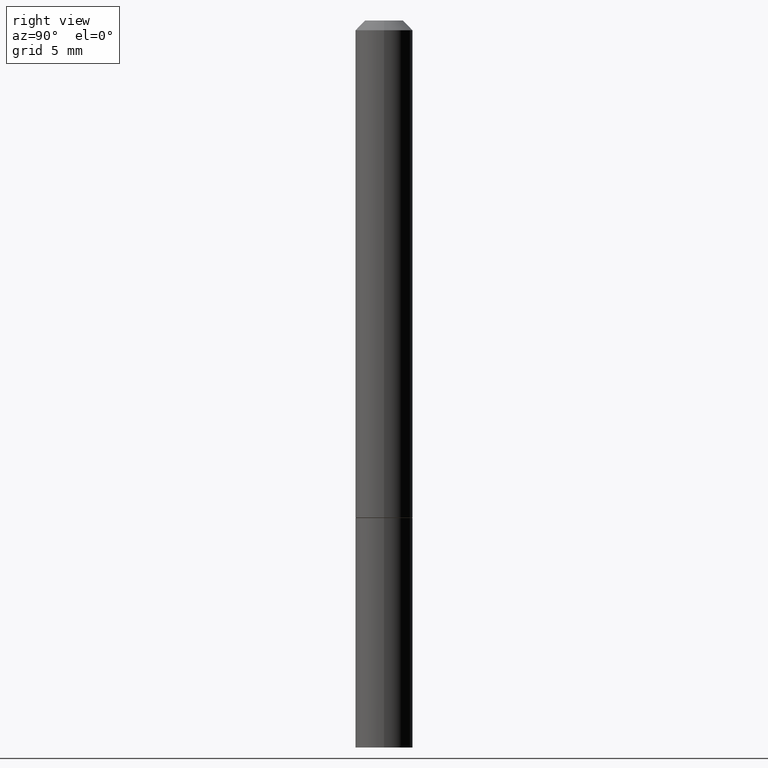
[diagram: clean part render]
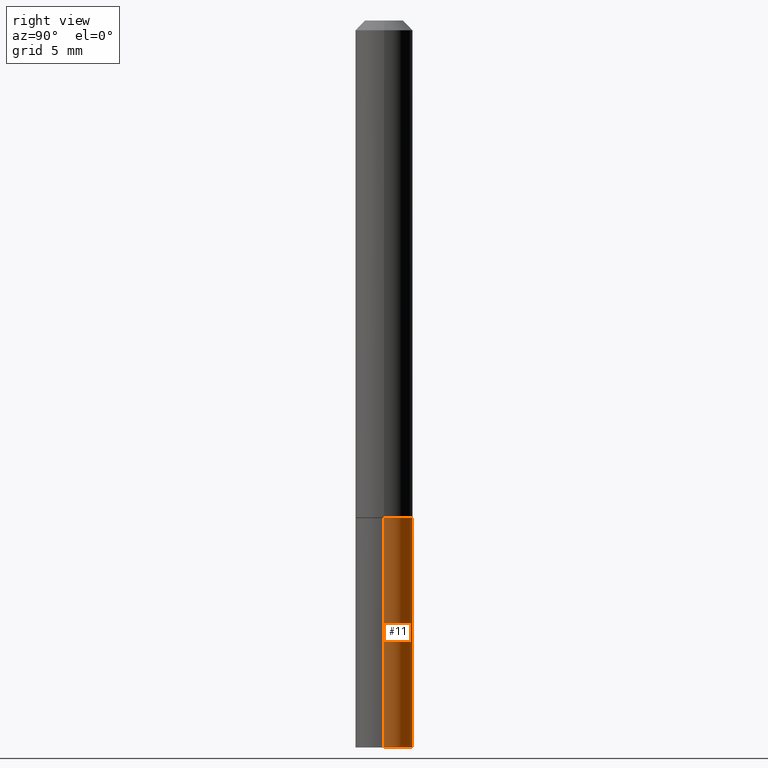
[diagram: same view with one face highlighted and labeled with its STEP entity id]
A machine part, right view. The second image highlights one B-rep face of the part: STEP entity #11.
In plain terms, the highlighted cylindrical surface (edge-blend (fillet) strip) has radius 1.4999 mm, axis along (-0, 0, 1).
Its self-contained STEP definition (entity closure, byte-faithful):
#11 = ADVANCED_FACE ( 'NONE', ( #31 ), #255, .T. ) ;
#19 = CARTESIAN_POINT ( 'NONE',  ( -0.05905000000000001914, -3.979341853342139538E-15, -1.496099999999999985 ) ) ;
#24 = VERTEX_POINT ( 'NONE', #60 ) ;
#31 = FACE_OUTER_BOUND ( 'NONE', #113, .T. ) ;
#38 = CARTESIAN_POINT ( 'NONE',  ( 0.05905000000000001914, -4.123439461173741806E-16, 2.879382386107500921E-30 ) ) ;
#40 = CARTESIAN_POINT ( 'NONE',  ( -0.05905000000000001914, -3.979341853342139538E-15, -1.023699999999999832 ) ) ;
#50 = VERTEX_POINT ( 'NONE', #66 ) ;
#60 = CARTESIAN_POINT ( 'NONE',  ( 0.05905000000000001914, -3.986573392691101744E-15, -1.023699999999999832 ) ) ;
#65 = DIRECTION ( 'NONE',  ( -2.445468806185136877E-29, 3.491481338843145188E-15, 1.000000000000000000 ) ) ;
#66 = CARTESIAN_POINT ( 'NONE',  ( 0.05905000000000001914, -5.635949177160603791E-15, -1.496099999999999985 ) ) ;
#74 = VECTOR ( 'NONE', #186, 39.37007874015748143 ) ;
#80 = LINE ( 'NONE', #156, #74 ) ;
#83 = ORIENTED_EDGE ( 'NONE', *, *, #250, .T. ) ;
#113 = EDGE_LOOP ( 'NONE', ( #332, #83, #135, #362 ) ) ;
#125 = AXIS2_PLACEMENT_3D ( 'NONE', #225, #245, #137 ) ;
#132 = DIRECTION ( 'NONE',  ( 1.000000000000000000, -6.982962677686262766E-15, 0.000000000000000000 ) ) ;
#134 = CARTESIAN_POINT ( 'NONE',  ( 3.658665880933582389E-29, -5.223605231043229660E-15, -1.496099999999999985 ) ) ;
#135 = ORIENTED_EDGE ( 'NONE', *, *, #300, .F. ) ;
#137 = DIRECTION ( 'NONE',  ( 1.000000000000000000, -6.982962677686266711E-15, 4.876176775795935793E-29 ) ) ;
#156 = CARTESIAN_POINT ( 'NONE',  ( -0.05905000000000001914, 4.195754854663392958E-16, -2.904631170795522943E-30 ) ) ;
#161 = VERTEX_POINT ( 'NONE', #40 ) ;
#186 = DIRECTION ( 'NONE',  ( -2.445468806185136877E-29, 3.491481338843145188E-15, 1.000000000000000000 ) ) ;
#195 = EDGE_CURVE ( 'NONE', #50, #24, #230, .T. ) ;
#199 = AXIS2_PLACEMENT_3D ( 'NONE', #328, #301, #132 ) ;
#209 = CIRCLE ( 'NONE', #199, 0.05905000000000001914 ) ;
#225 = CARTESIAN_POINT ( 'NONE',  ( 0.000000000000000000, 0.000000000000000000, 0.000000000000000000 ) ) ;
#230 = LINE ( 'NONE', #38, #355 ) ;
#245 = DIRECTION ( 'NONE',  ( -2.445468806185136597E-29, 3.491481338843145583E-15, 1.000000000000000000 ) ) ;
#246 = DIRECTION ( 'NONE',  ( -2.445468806185136597E-29, 3.491481338843145583E-15, 1.000000000000000000 ) ) ;
#250 = EDGE_CURVE ( 'NONE', #315, #161, #80, .T. ) ;
#255 = CYLINDRICAL_SURFACE ( 'NONE', #125, 0.05905000000000001914 ) ;
#300 = EDGE_CURVE ( 'NONE', #24, #161, #209, .T. ) ;
#301 = DIRECTION ( 'NONE',  ( -2.445468806185136597E-29, 3.491481338843145583E-15, 1.000000000000000000 ) ) ;
#315 = VERTEX_POINT ( 'NONE', #19 ) ;
#323 = AXIS2_PLACEMENT_3D ( 'NONE', #134, #246, #333 ) ;
#327 = CIRCLE ( 'NONE', #323, 0.05905000000000001914 ) ;
#328 = CARTESIAN_POINT ( 'NONE',  ( 2.503426416891723784E-29, -3.574229446573727613E-15, -1.023699999999999832 ) ) ;
#332 = ORIENTED_EDGE ( 'NONE', *, *, #338, .T. ) ;
#333 = DIRECTION ( 'NONE',  ( 1.000000000000000000, -6.982962677686270655E-15, 0.000000000000000000 ) ) ;
#338 = EDGE_CURVE ( 'NONE', #50, #315, #327, .T. ) ;
#355 = VECTOR ( 'NONE', #65, 39.37007874015748143 ) ;
#362 = ORIENTED_EDGE ( 'NONE', *, *, #195, .F. ) ;